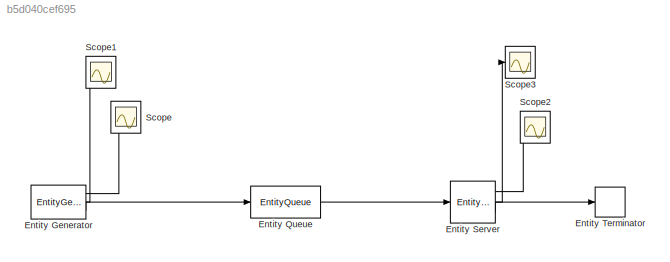
MODEL slx_b5d040cef695
KIND model
CONFIG AbsTol = auto
CONFIG FixedStep = auto
CONFIG MaxStep = auto
CONFIG MinStep = auto
CONFIG RelTol = 1e-3
CONFIG SampleTimeConstraint = Unconstrained
CONFIG Solver = VariableStepDiscrete
CONFIG SolverMode = Auto
CONFIG SolverName = VariableStepDiscrete
CONFIG StartTime = 0.0
CONFIG StopTime = 100
BLOCK [EntityGenerator] Entity Generator
  AverageIntergenerationTime = on
  EntityType = Structured
  EntityTypeName = Entity
  IntergenerationTimeAction = dt = 0.8 * rand + 0.2
  NumberEntitiesDeparted = on
  OutputPortMap = o0,o2,o3
  OutputPortMessageModes = n,n,m
  Ports = [0, 3]
  TimeSource = MATLAB action
BLOCK [EntityQueue] Entity Queue
  Capacity = inf
  InputPortMap = u0
  InputPortMessageModes = m
  OutputPortMap = o5
  OutputPortMessageModes = m
  Ports = [1, 1]
BLOCK [EntityServer] Entity Server
  AverageWait = on
  Capacity = 1
  InputPortMap = u2
  InputPortMessageModes = m
  NumberEntitiesDeparted = on
  OutputPortMap = o0,o4,o9
  OutputPortMessageModes = n,n,m
  Ports = [1, 3]
  ServiceTimeAction = dt = 0.3 + 0.9 * rand;
  ServiceTimeSource = MATLAB action
BLOCK [EntityTerminator] Entity Terminator
  InputPortMap = u0
  InputPortMessageModes = m
  Ports = [1]
BLOCK [Scope] Scope
  Ports = [1]
  ScopeSpecificationString = Simulink.scopes.TimeScopeBlockCfg('CurrentConfiguration', extmgr.ConfigurationSet(extmgr.Configuration('Core','General UI',true),extmgr.Configuration('Core','Source UI',true),extmgr.Configuration('Sources','WiredSimulink',true),extmgr.Configuration('Visuals','Time Domain',true,'SerializedDisplays',{struct('MinYLimReal','-19.75','MaxYLimReal','187.75','YLabelReal','','MinYLimMag','0.00000','MaxYLim...<+1432ch>
BLOCK [Scope] Scope1
  Ports = [1]
  ScopeSpecificationString = Simulink.scopes.TimeScopeBlockCfg('CurrentConfiguration', extmgr.ConfigurationSet(extmgr.Configuration('Core','General UI',true),extmgr.Configuration('Core','Source UI',true),extmgr.Configuration('Sources','WiredSimulink',true,'DataLoggingVariableName','ScopeData1'),extmgr.Configuration('Visuals','Time Domain',true,'SerializedDisplays',{struct('MinYLimReal','-0.08659','MaxYLimReal','0.7793','YLabe...<+1468ch>
BLOCK [Scope] Scope2
  Ports = [1]
  ScopeSpecificationString = Simulink.scopes.TimeScopeBlockCfg('CurrentConfiguration', extmgr.ConfigurationSet(extmgr.Configuration('Core','General UI',true),extmgr.Configuration('Core','Source UI',true),extmgr.Configuration('Sources','WiredSimulink',true,'DataLoggingVariableName','ScopeData2'),extmgr.Configuration('Visuals','Time Domain',true,'SerializedDisplays',{struct('MinYLimReal','-15.125','MaxYLimReal','146.125','YLabe...<+1477ch>
BLOCK [Scope] Scope3
  Ports = [1]
  ScopeSpecificationString = Simulink.scopes.TimeScopeBlockCfg('CurrentConfiguration', extmgr.ConfigurationSet(extmgr.Configuration('Core','General UI',true),extmgr.Configuration('Core','Source UI',true),extmgr.Configuration('Sources','WiredSimulink',true,'DataLoggingVariableName','ScopeData3'),extmgr.Configuration('Visuals','Time Domain',true,'SerializedDisplays',{struct('MinYLimReal','0.72594','MaxYLimReal','1.11293','YLabe...<+1450ch>
LINE Entity Generator:1 -> Scope:1
LINE Entity Generator:2 -> Scope1:1
LINE Entity Generator:3 -> Entity Queue:1
LINE Entity Queue:1 -> Entity Server:1
LINE Entity Server:1 -> Scope2:1
LINE Entity Server:2 -> Scope3:1
LINE Entity Server:3 -> Entity Terminator:1
